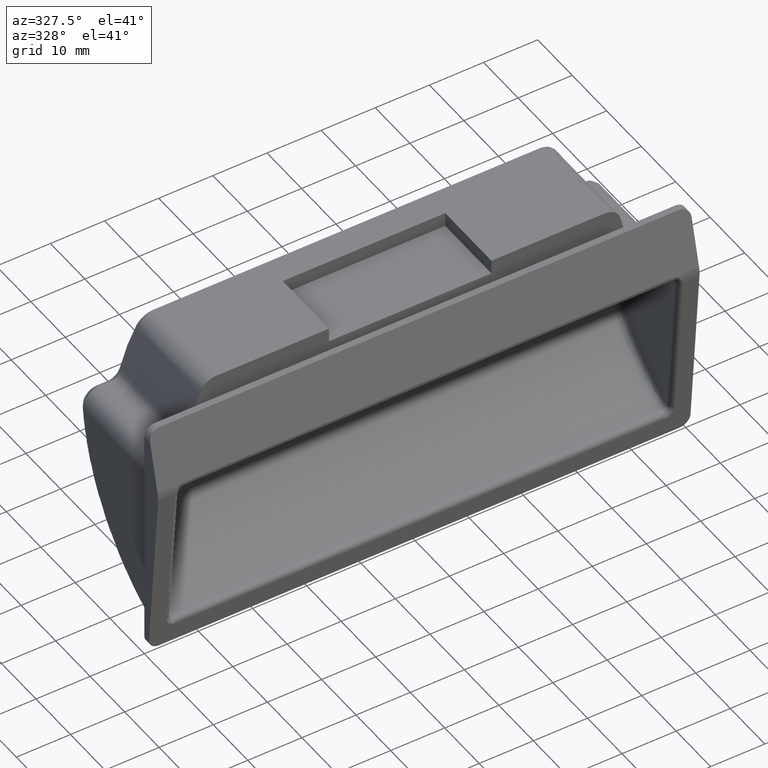
[diagram: clean part render]
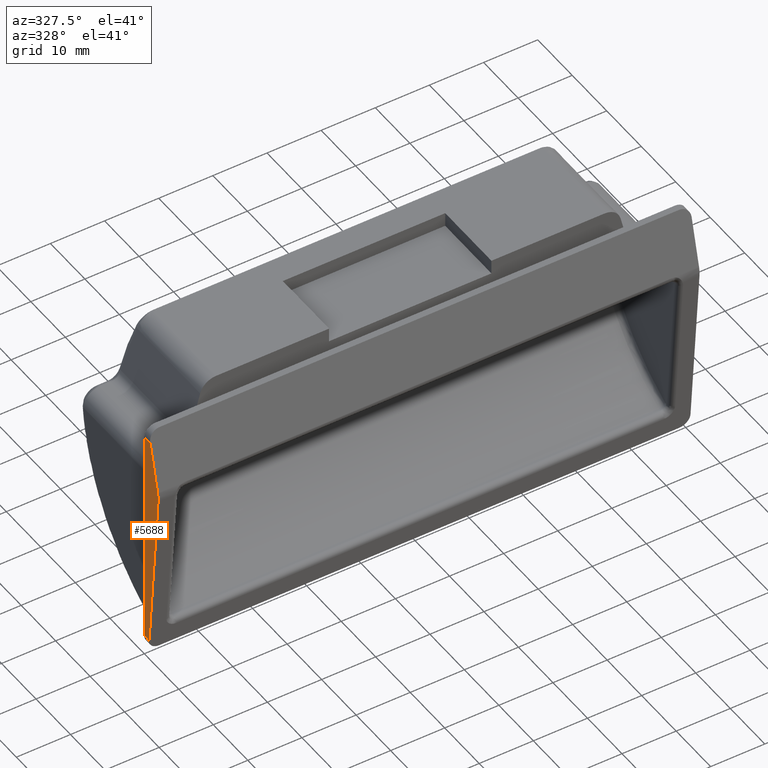
[diagram: same view with one face highlighted and labeled with its STEP entity id]
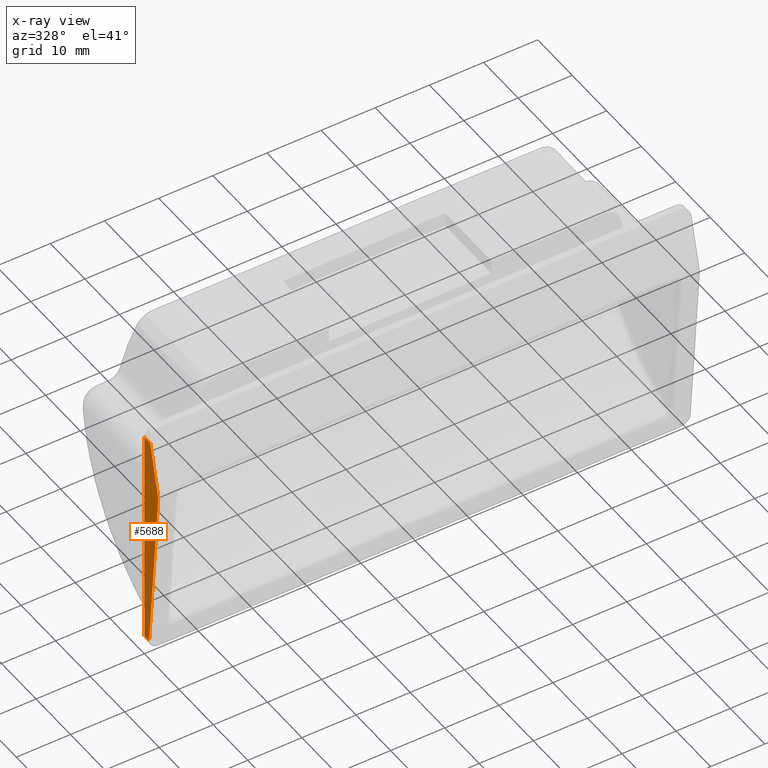
[diagram: x-ray of the same camera — body ghosted, the highlighted face saturated]
A machine part, auxiliary view. The second image highlights one B-rep face of the part: STEP entity #5688.
The next image is the same camera in x-ray: the body ghosted, the highlighted face saturated — about 0% of this face is hidden behind the body in this view.
In plain terms, the highlighted face is a freeform B-spline surface patch.
Its self-contained STEP definition (entity closure, byte-faithful):
#5059=CARTESIAN_POINT('',(-50.0,0.0,19.750000000000000));
#5060=VERTEX_POINT('',#5059);
#5076=CARTESIAN_POINT('',(-50.0,-1.691457271738485,19.750000000000000));
#5077=VERTEX_POINT('',#5076);
#5078=CARTESIAN_POINT('',(-50.0,-1.691457271738485,19.750000000000000));
#5079=CARTESIAN_POINT('',(-50.0,0.0,19.750000000000000));
#5080=QUASI_UNIFORM_CURVE('',1,(#5078,#5079),.UNSPECIFIED.,.F.,.U.);
#5081=EDGE_CURVE('',#5077,#5060,#5080,.T.);
#5120=CARTESIAN_POINT('',(-50.0,-1.370799975490242,-21.250000000000000));
#5121=VERTEX_POINT('',#5120);
#5137=CARTESIAN_POINT('',(-50.0,0.0,-21.250000000000000));
#5138=VERTEX_POINT('',#5137);
#5139=CARTESIAN_POINT('',(-50.0,0.0,-21.250000000000000));
#5140=CARTESIAN_POINT('',(-50.0,-1.370799975490242,-21.250000000000000));
#5141=QUASI_UNIFORM_CURVE('',1,(#5139,#5140),.UNSPECIFIED.,.F.,.U.);
#5142=EDGE_CURVE('',#5138,#5121,#5141,.T.);
#5647=CARTESIAN_POINT('',(-50.0,-4.199791503391549,-23.297949920534041));
#5648=CARTESIAN_POINT('',(-50.0,0.199799695688522,-23.297949920534041));
#5649=CARTESIAN_POINT('',(-50.0,-4.199791503391549,21.797951020239740));
#5650=CARTESIAN_POINT('',(-50.0,0.199799695688522,21.797951020239740));
#5651=B_SPLINE_SURFACE_WITH_KNOTS('',1,1,((#5647,#5649),(#5648,#5650)),.UNSPECIFIED.,.F.,.F.,.U.,(2,2),(2,2),(0.0,4.399591199080071),(0.0,45.095900940773781),.UNSPECIFIED.);
#5652=CARTESIAN_POINT('',(-50.0,0.0,-21.250000000000000));
#5653=CARTESIAN_POINT('',(-50.0,0.0,19.750000000000000));
#5654=QUASI_UNIFORM_CURVE('',1,(#5652,#5653),.UNSPECIFIED.,.F.,.U.);
#5655=EDGE_CURVE('',#5138,#5060,#5654,.T.);
#5656=ORIENTED_EDGE('',*,*,#5655,.F.);
#5657=ORIENTED_EDGE('',*,*,#5142,.T.);
#5658=CARTESIAN_POINT('',(-50.0,-3.981866026464724,9.324548309891391));
#5659=VERTEX_POINT('',#5658);
#5660=CARTESIAN_POINT('',(-50.0,-3.981866026464724,9.324548309891391));
#5661=CARTESIAN_POINT('',(-50.0,-1.370799975490242,-21.250000000000000));
#5662=QUASI_UNIFORM_CURVE('',1,(#5660,#5661),.UNSPECIFIED.,.F.,.U.);
#5663=EDGE_CURVE('',#5659,#5121,#5662,.T.);
#5664=ORIENTED_EDGE('',*,*,#5663,.F.);
#5665=CARTESIAN_POINT('',(-50.0,-3.855553000000000,10.943147999999780));
#5666=VERTEX_POINT('',#5665);
#5667=CARTESIAN_POINT('',(-50.0,-3.855552999999986,10.943147999999780));
#5668=CARTESIAN_POINT('',(-50.0,-4.051867653542099,10.144239611093594));
#5669=CARTESIAN_POINT('',(-50.0,-3.981866026464725,9.324548309891389));
#5677=(BOUNDED_CURVE()B_SPLINE_CURVE(2,(#5667,#5668,#5669),.UNSPECIFIED.,.F.,.U.)CURVE()GEOMETRIC_REPRESENTATION_ITEM()QUASI_UNIFORM_CURVE()RATIONAL_B_SPLINE_CURVE((1.0,0.986732892238454,1.0))REPRESENTATION_ITEM(''));
#5678=EDGE_CURVE('',#5666,#5659,#5677,.T.);
#5679=ORIENTED_EDGE('',*,*,#5678,.F.);
#5680=CARTESIAN_POINT('',(-50.0,-1.691457271738485,19.750000000000000));
#5681=CARTESIAN_POINT('',(-50.0,-3.855553000000000,10.943147999999780));
#5682=QUASI_UNIFORM_CURVE('',1,(#5680,#5681),.UNSPECIFIED.,.F.,.U.);
#5683=EDGE_CURVE('',#5077,#5666,#5682,.T.);
#5684=ORIENTED_EDGE('',*,*,#5683,.F.);
#5685=ORIENTED_EDGE('',*,*,#5081,.T.);
#5686=EDGE_LOOP('',(#5656,#5657,#5664,#5679,#5684,#5685));
#5687=FACE_OUTER_BOUND('',#5686,.T.);
#5688=ADVANCED_FACE('',(#5687),#5651,.F.);